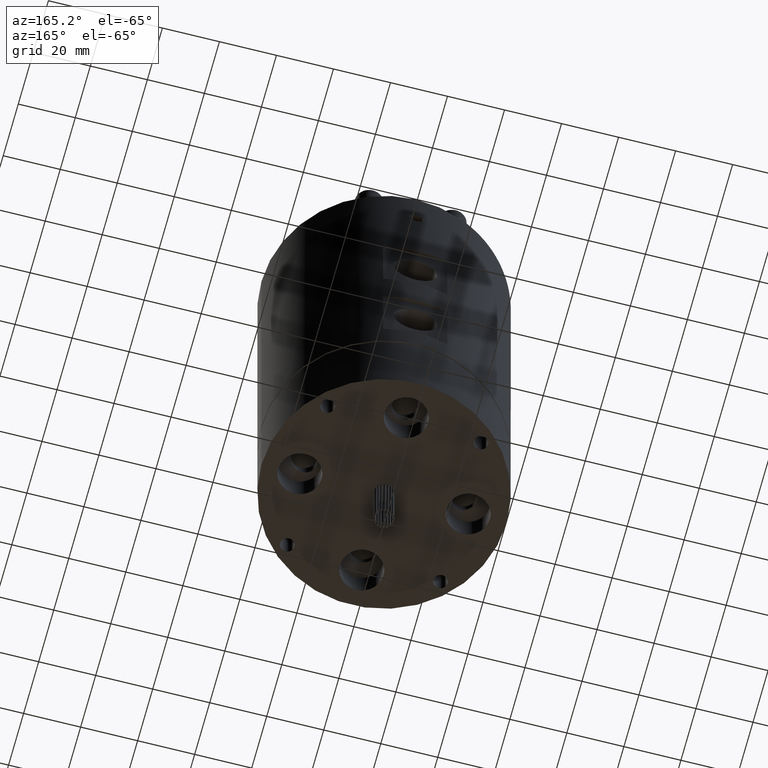
[diagram: clean part render]
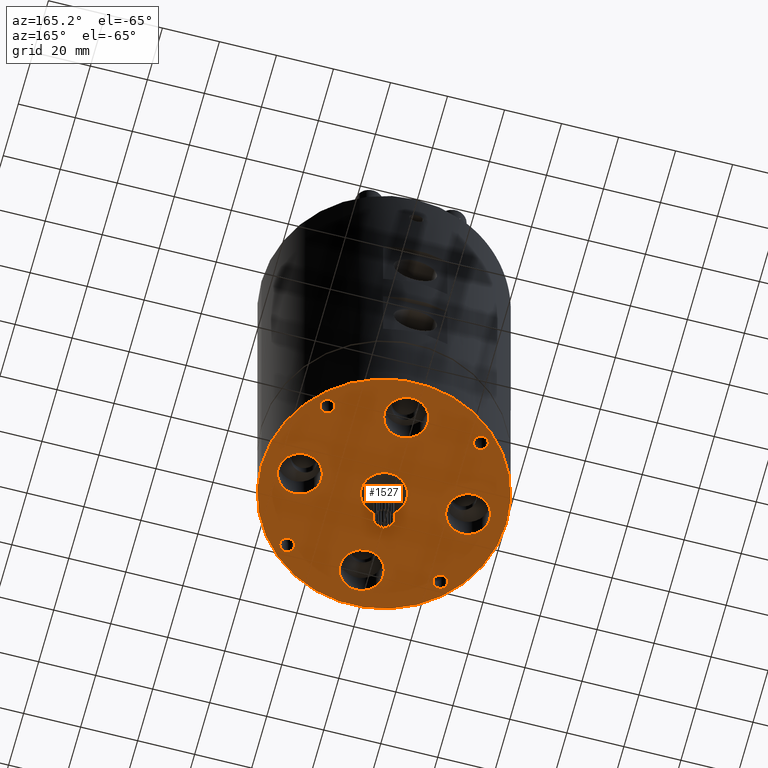
[diagram: same view with one face highlighted and labeled with its STEP entity id]
A machine part, auxiliary view. The second image highlights one B-rep face of the part: STEP entity #1527.
In plain terms, the highlighted planar face has unit normal (0, 0, 1).
Its self-contained STEP definition (entity closure, byte-faithful):
#16 = DIRECTION ( 'NONE',  ( 0.0000000000000000000, 0.0000000000000000000, -1.000000000000000000 ) ) ;
#19 = ORIENTED_EDGE ( 'NONE', *, *, #2160, .F. ) ;
#238 = CIRCLE ( 'NONE', #5121, 2.499999999999998700 ) ;
#241 = CIRCLE ( 'NONE', #2140, 8.000000000000000000 ) ;
#299 = AXIS2_PLACEMENT_3D ( 'NONE', #8094, #3962, #8791 ) ;
#300 = AXIS2_PLACEMENT_3D ( 'NONE', #5427, #1250, #6112 ) ;
#322 = DIRECTION ( 'NONE',  ( 0.0000000000000000000, 0.0000000000000000000, 1.000000000000000000 ) ) ;
#324 = ORIENTED_EDGE ( 'NONE', *, *, #7627, .F. ) ;
#362 = CARTESIAN_POINT ( 'NONE',  ( -37.12500000000000000, -1.029986994958724300E-013, 3.949485927250214300E-016 ) ) ;
#399 = DIRECTION ( 'NONE',  ( 0.0000000000000000000, 0.0000000000000000000, 1.000000000000000000 ) ) ;
#501 = CARTESIAN_POINT ( 'NONE',  ( -26.87005768508875300, -26.87005768508885200, 4.898587196589420500E-017 ) ) ;
#587 = ORIENTED_EDGE ( 'NONE', *, *, #4352, .F. ) ;
#593 = AXIS2_PLACEMENT_3D ( 'NONE', #5777, #1622, #6468 ) ;
#633 = EDGE_LOOP ( 'NONE', ( #7996, #5706 ) ) ;
#719 = ORIENTED_EDGE ( 'NONE', *, *, #7193, .F. ) ;
#726 = EDGE_CURVE ( 'NONE', #3837, #2728, #5026, .T. ) ;
#733 = CARTESIAN_POINT ( 'NONE',  ( 24.37005768508875300, -26.87005768508885200, 4.898587196589420500E-017 ) ) ;
#752 = ORIENTED_EDGE ( 'NONE', *, *, #1550, .F. ) ;
#845 = DIRECTION ( 'NONE',  ( -0.0000000000000000000, -0.0000000000000000000, -1.000000000000000000 ) ) ;
#855 = EDGE_LOOP ( 'NONE', ( #19, #587 ) ) ;
#911 = CIRCLE ( 'NONE', #3224, 7.625000000000000000 ) ;
#1061 = CIRCLE ( 'NONE', #300, 7.625000000000000000 ) ;
#1063 = DIRECTION ( 'NONE',  ( -0.0000000000000000000, -0.0000000000000000000, -1.000000000000000000 ) ) ;
#1078 = CARTESIAN_POINT ( 'NONE',  ( -29.50000000000000000, -1.029986994958724300E-013, 3.949485927250214300E-016 ) ) ;
#1095 = EDGE_CURVE ( 'NONE', #8257, #6250, #7270, .T. ) ;
#1211 = DIRECTION ( 'NONE',  ( -1.000000000000000000, 0.0000000000000000000, 0.0000000000000000000 ) ) ;
#1231 = AXIS2_PLACEMENT_3D ( 'NONE', #6138, #2009, #6839 ) ;
#1250 = DIRECTION ( 'NONE',  ( -0.0000000000000000000, -0.0000000000000000000, -1.000000000000000000 ) ) ;
#1454 = CARTESIAN_POINT ( 'NONE',  ( -8.000000000000000000, 0.0000000000000000000, 0.0000000000000000000 ) ) ;
#1467 = AXIS2_PLACEMENT_3D ( 'NONE', #7707, #3571, #8397 ) ;
#1512 = FACE_BOUND ( 'NONE', #3616, .T. ) ;
#1515 = CARTESIAN_POINT ( 'NONE',  ( -7.625000000000000000, 29.50000000000000000, 3.949485927250214300E-016 ) ) ;
#1527 = ADVANCED_FACE ( 'NONE', ( #1744, #7258, #1964, #8901, #7040, #5222, #3393, #1512, #8680, #6826 ), #6753, .F. ) ;
#1550 = EDGE_CURVE ( 'NONE', #8917, #4302, #1061, .T. ) ;
#1587 = EDGE_CURVE ( 'NONE', #6574, #2599, #4794, .T. ) ;
#1617 = DIRECTION ( 'NONE',  ( -0.0000000000000000000, -0.0000000000000000000, -1.000000000000000000 ) ) ;
#1622 = DIRECTION ( 'NONE',  ( -0.0000000000000000000, -0.0000000000000000000, -1.000000000000000000 ) ) ;
#1676 = ORIENTED_EDGE ( 'NONE', *, *, #1587, .F. ) ;
#1744 = FACE_BOUND ( 'NONE', #4807, .T. ) ;
#1802 = DIRECTION ( 'NONE',  ( -1.000000000000000000, 0.0000000000000000000, 0.0000000000000000000 ) ) ;
#1899 = CIRCLE ( 'NONE', #8836, 2.499999999999998700 ) ;
#1912 = CARTESIAN_POINT ( 'NONE',  ( 0.0000000000000000000, 0.0000000000000000000, 0.0000000000000000000 ) ) ;
#1933 = EDGE_CURVE ( 'NONE', #4808, #3156, #8563, .T. ) ;
#1964 = FACE_BOUND ( 'NONE', #8045, .T. ) ;
#2009 = DIRECTION ( 'NONE',  ( -0.0000000000000000000, -0.0000000000000000000, -1.000000000000000000 ) ) ;
#2026 = CIRCLE ( 'NONE', #4180, 2.499999999999998700 ) ;
#2043 = ORIENTED_EDGE ( 'NONE', *, *, #4441, .F. ) ;
#2092 = EDGE_LOOP ( 'NONE', ( #752, #719 ) ) ;
#2140 = AXIS2_PLACEMENT_3D ( 'NONE', #4210, #16, #4907 ) ;
#2160 = EDGE_CURVE ( 'NONE', #6299, #7053, #2026, .T. ) ;
#2177 = ORIENTED_EDGE ( 'NONE', *, *, #6014, .F. ) ;
#2216 = CIRCLE ( 'NONE', #7581, 8.000000000000000000 ) ;
#2253 = AXIS2_PLACEMENT_3D ( 'NONE', #5041, #845, #5714 ) ;
#2290 = DIRECTION ( 'NONE',  ( -0.0000000000000000000, -0.0000000000000000000, -1.000000000000000000 ) ) ;
#2342 = EDGE_CURVE ( 'NONE', #7394, #6000, #241, .T. ) ;
#2384 = ORIENTED_EDGE ( 'NONE', *, *, #7989, .F. ) ;
#2440 = DIRECTION ( 'NONE',  ( 0.0000000000000000000, 0.0000000000000000000, -1.000000000000000000 ) ) ;
#2599 = VERTEX_POINT ( 'NONE', #6566 ) ;
#2667 = CARTESIAN_POINT ( 'NONE',  ( 0.0000000000000000000, 29.50000000000000000, 3.949485927250214300E-016 ) ) ;
#2713 = VERTEX_POINT ( 'NONE', #6260 ) ;
#2728 = VERTEX_POINT ( 'NONE', #8356 ) ;
#2804 = EDGE_CURVE ( 'NONE', #8312, #5858, #4396, .T. ) ;
#2834 = ORIENTED_EDGE ( 'NONE', *, *, #2804, .F. ) ;
#2852 = AXIS2_PLACEMENT_3D ( 'NONE', #6891, #2290, #7107 ) ;
#2867 = ORIENTED_EDGE ( 'NONE', *, *, #7910, .F. ) ;
#2952 = AXIS2_PLACEMENT_3D ( 'NONE', #501, #5388, #1211 ) ;
#2957 = CARTESIAN_POINT ( 'NONE',  ( 7.625000000000000900, 29.50000000000000000, 3.949485927250214300E-016 ) ) ;
#3080 = DIRECTION ( 'NONE',  ( -0.0000000000000000000, -0.0000000000000000000, -1.000000000000000000 ) ) ;
#3097 = CARTESIAN_POINT ( 'NONE',  ( 8.000000000000000000, 9.797174393178825700E-016, 0.0000000000000000000 ) ) ;
#3156 = VERTEX_POINT ( 'NONE', #6745 ) ;
#3178 = CARTESIAN_POINT ( 'NONE',  ( -26.87005768508875300, -26.87005768508885200, 4.898587196589420500E-017 ) ) ;
#3211 = CARTESIAN_POINT ( 'NONE',  ( 7.625000000000000900, -29.50000000000000000, 3.949485927250214300E-016 ) ) ;
#3224 = AXIS2_PLACEMENT_3D ( 'NONE', #1078, #5945, #1802 ) ;
#3370 = DIRECTION ( 'NONE',  ( -1.000000000000000000, 0.0000000000000000000, 0.0000000000000000000 ) ) ;
#3393 = FACE_BOUND ( 'NONE', #8688, .T. ) ;
#3571 = DIRECTION ( 'NONE',  ( -0.0000000000000000000, -0.0000000000000000000, -1.000000000000000000 ) ) ;
#3582 = CIRCLE ( 'NONE', #2852, 2.499999999999998700 ) ;
#3616 = EDGE_LOOP ( 'NONE', ( #5746, #2043 ) ) ;
#3656 = EDGE_CURVE ( 'NONE', #3787, #4669, #8501, .T. ) ;
#3672 = CIRCLE ( 'NONE', #6953, 43.00000000000000000 ) ;
#3787 = VERTEX_POINT ( 'NONE', #5901 ) ;
#3837 = VERTEX_POINT ( 'NONE', #3211 ) ;
#3865 = DIRECTION ( 'NONE',  ( -1.000000000000000000, 0.0000000000000000000, 0.0000000000000000000 ) ) ;
#3935 = CARTESIAN_POINT ( 'NONE',  ( 26.87005768508875300, 26.87005768508885200, 4.898587196589420500E-017 ) ) ;
#3962 = DIRECTION ( 'NONE',  ( -0.0000000000000000000, -0.0000000000000000000, -1.000000000000000000 ) ) ;
#3982 = CARTESIAN_POINT ( 'NONE',  ( 26.87005768508875300, -26.87005768508885200, 4.898587196589420500E-017 ) ) ;
#4066 = EDGE_CURVE ( 'NONE', #2728, #3837, #5895, .T. ) ;
#4180 = AXIS2_PLACEMENT_3D ( 'NONE', #3982, #8809, #4674 ) ;
#4210 = CARTESIAN_POINT ( 'NONE',  ( 0.0000000000000000000, 0.0000000000000000000, 0.0000000000000000000 ) ) ;
#4302 = VERTEX_POINT ( 'NONE', #2957 ) ;
#4327 = EDGE_LOOP ( 'NONE', ( #2177, #324 ) ) ;
#4339 = AXIS2_PLACEMENT_3D ( 'NONE', #5772, #1617, #6463 ) ;
#4352 = EDGE_CURVE ( 'NONE', #7053, #6299, #8173, .T. ) ;
#4360 = ORIENTED_EDGE ( 'NONE', *, *, #5844, .F. ) ;
#4367 = AXIS2_PLACEMENT_3D ( 'NONE', #4596, #399, #5279 ) ;
#4396 = CIRCLE ( 'NONE', #2253, 7.625000000000000000 ) ;
#4441 = EDGE_CURVE ( 'NONE', #6000, #7394, #2216, .T. ) ;
#4511 = CARTESIAN_POINT ( 'NONE',  ( 0.0000000000000000000, 0.0000000000000000000, 0.0000000000000000000 ) ) ;
#4541 = CARTESIAN_POINT ( 'NONE',  ( 21.87500000000000000, 3.089960984876173000E-013, 3.949485927250214300E-016 ) ) ;
#4596 = CARTESIAN_POINT ( 'NONE',  ( 0.0000000000000000000, 0.0000000000000000000, 0.0000000000000000000 ) ) ;
#4628 = DIRECTION ( 'NONE',  ( -1.000000000000000000, 0.0000000000000000000, 0.0000000000000000000 ) ) ;
#4669 = VERTEX_POINT ( 'NONE', #6022 ) ;
#4674 = DIRECTION ( 'NONE',  ( -1.000000000000000000, 0.0000000000000000000, 0.0000000000000000000 ) ) ;
#4715 = DIRECTION ( 'NONE',  ( 1.000000000000000000, 0.0000000000000000000, -0.0000000000000000000 ) ) ;
#4794 = CIRCLE ( 'NONE', #1231, 7.625000000000000000 ) ;
#4807 = EDGE_LOOP ( 'NONE', ( #1676, #4360 ) ) ;
#4808 = VERTEX_POINT ( 'NONE', #6139 ) ;
#4907 = DIRECTION ( 'NONE',  ( -1.000000000000000000, 0.0000000000000000000, 0.0000000000000000000 ) ) ;
#5026 = CIRCLE ( 'NONE', #1467, 7.625000000000000000 ) ;
#5041 = CARTESIAN_POINT ( 'NONE',  ( -29.50000000000000000, -1.029986994958724300E-013, 3.949485927250214300E-016 ) ) ;
#5121 = AXIS2_PLACEMENT_3D ( 'NONE', #7194, #3080, #7906 ) ;
#5211 = DIRECTION ( 'NONE',  ( 1.000000000000000000, 0.0000000000000000000, 0.0000000000000000000 ) ) ;
#5222 = FACE_BOUND ( 'NONE', #7848, .T. ) ;
#5250 = CARTESIAN_POINT ( 'NONE',  ( 29.50000000000000000, 3.089960984876173000E-013, 3.949485927250214300E-016 ) ) ;
#5264 = EDGE_CURVE ( 'NONE', #6250, #8257, #3582, .T. ) ;
#5279 = DIRECTION ( 'NONE',  ( 1.000000000000000000, 0.0000000000000000000, 0.0000000000000000000 ) ) ;
#5388 = DIRECTION ( 'NONE',  ( -0.0000000000000000000, -0.0000000000000000000, -1.000000000000000000 ) ) ;
#5427 = CARTESIAN_POINT ( 'NONE',  ( 0.0000000000000000000, 29.50000000000000000, 3.949485927250214300E-016 ) ) ;
#5509 = ORIENTED_EDGE ( 'NONE', *, *, #6598, .F. ) ;
#5567 = CARTESIAN_POINT ( 'NONE',  ( 24.37005768508875300, 26.87005768508885200, 4.898587196589420500E-017 ) ) ;
#5705 = CARTESIAN_POINT ( 'NONE',  ( -21.87500000000000000, -1.020649063115225800E-013, 3.949485927250214300E-016 ) ) ;
#5706 = ORIENTED_EDGE ( 'NONE', *, *, #726, .F. ) ;
#5711 = EDGE_LOOP ( 'NONE', ( #2867, #6686 ) ) ;
#5714 = DIRECTION ( 'NONE',  ( -1.000000000000000000, 0.0000000000000000000, 0.0000000000000000000 ) ) ;
#5746 = ORIENTED_EDGE ( 'NONE', *, *, #2342, .F. ) ;
#5772 = CARTESIAN_POINT ( 'NONE',  ( 26.87005768508875300, -26.87005768508885200, 4.898587196589420500E-017 ) ) ;
#5777 = CARTESIAN_POINT ( 'NONE',  ( -26.87005768508875300, 26.87005768508885200, 4.898587196589420500E-017 ) ) ;
#5844 = EDGE_CURVE ( 'NONE', #2599, #6574, #6800, .T. ) ;
#5848 = ORIENTED_EDGE ( 'NONE', *, *, #1933, .F. ) ;
#5858 = VERTEX_POINT ( 'NONE', #362 ) ;
#5895 = CIRCLE ( 'NONE', #299, 7.625000000000000000 ) ;
#5901 = CARTESIAN_POINT ( 'NONE',  ( -24.37005768508875300, 26.87005768508885200, 4.898587196589420500E-017 ) ) ;
#5928 = DIRECTION ( 'NONE',  ( -1.000000000000000000, 0.0000000000000000000, 0.0000000000000000000 ) ) ;
#5945 = DIRECTION ( 'NONE',  ( -0.0000000000000000000, -0.0000000000000000000, -1.000000000000000000 ) ) ;
#6000 = VERTEX_POINT ( 'NONE', #3097 ) ;
#6014 = EDGE_CURVE ( 'NONE', #7111, #2713, #3672, .T. ) ;
#6022 = CARTESIAN_POINT ( 'NONE',  ( -29.37005768508874900, 26.87005768508885200, 4.898587196589420500E-017 ) ) ;
#6112 = DIRECTION ( 'NONE',  ( -1.000000000000000000, 0.0000000000000000000, 0.0000000000000000000 ) ) ;
#6138 = CARTESIAN_POINT ( 'NONE',  ( 29.50000000000000000, 3.089960984876173000E-013, 3.949485927250214300E-016 ) ) ;
#6139 = CARTESIAN_POINT ( 'NONE',  ( -29.37005768508874900, -26.87005768508885200, 4.898587196589420500E-017 ) ) ;
#6250 = VERTEX_POINT ( 'NONE', #7611 ) ;
#6260 = CARTESIAN_POINT ( 'NONE',  ( 43.00000000000000000, 5.265981236333618500E-015, 0.0000000000000000000 ) ) ;
#6299 = VERTEX_POINT ( 'NONE', #733 ) ;
#6463 = DIRECTION ( 'NONE',  ( -1.000000000000000000, 0.0000000000000000000, 0.0000000000000000000 ) ) ;
#6468 = DIRECTION ( 'NONE',  ( -1.000000000000000000, 0.0000000000000000000, 0.0000000000000000000 ) ) ;
#6541 = AXIS2_PLACEMENT_3D ( 'NONE', #2667, #7486, #3370 ) ;
#6546 = ORIENTED_EDGE ( 'NONE', *, *, #5264, .F. ) ;
#6553 = CARTESIAN_POINT ( 'NONE',  ( 0.0000000000000000000, 0.0000000000000000000, 0.0000000000000000000 ) ) ;
#6566 = CARTESIAN_POINT ( 'NONE',  ( 37.12500000000000000, 3.099298916719671200E-013, 3.949485927250214300E-016 ) ) ;
#6574 = VERTEX_POINT ( 'NONE', #4541 ) ;
#6598 = EDGE_CURVE ( 'NONE', #5858, #8312, #911, .T. ) ;
#6681 = ORIENTED_EDGE ( 'NONE', *, *, #1095, .F. ) ;
#6686 = ORIENTED_EDGE ( 'NONE', *, *, #3656, .F. ) ;
#6745 = CARTESIAN_POINT ( 'NONE',  ( -24.37005768508875300, -26.87005768508885200, 4.898587196589420500E-017 ) ) ;
#6753 = PLANE ( 'NONE',  #8386 ) ;
#6800 = CIRCLE ( 'NONE', #8517, 7.625000000000000000 ) ;
#6826 = FACE_OUTER_BOUND ( 'NONE', #4327, .T. ) ;
#6839 = DIRECTION ( 'NONE',  ( -1.000000000000000000, 0.0000000000000000000, 0.0000000000000000000 ) ) ;
#6875 = AXIS2_PLACEMENT_3D ( 'NONE', #3935, #8764, #4628 ) ;
#6891 = CARTESIAN_POINT ( 'NONE',  ( 26.87005768508875300, 26.87005768508885200, 4.898587196589420500E-017 ) ) ;
#6953 = AXIS2_PLACEMENT_3D ( 'NONE', #4511, #322, #5211 ) ;
#7040 = FACE_BOUND ( 'NONE', #855, .T. ) ;
#7053 = VERTEX_POINT ( 'NONE', #7132 ) ;
#7089 = CIRCLE ( 'NONE', #6541, 7.625000000000000000 ) ;
#7107 = DIRECTION ( 'NONE',  ( -1.000000000000000000, 0.0000000000000000000, 0.0000000000000000000 ) ) ;
#7111 = VERTEX_POINT ( 'NONE', #8596 ) ;
#7132 = CARTESIAN_POINT ( 'NONE',  ( 29.37005768508874900, -26.87005768508885200, 4.898587196589420500E-017 ) ) ;
#7193 = EDGE_CURVE ( 'NONE', #4302, #8917, #7089, .T. ) ;
#7194 = CARTESIAN_POINT ( 'NONE',  ( -26.87005768508875300, 26.87005768508885200, 4.898587196589420500E-017 ) ) ;
#7258 = FACE_BOUND ( 'NONE', #633, .T. ) ;
#7260 = DIRECTION ( 'NONE',  ( -1.000000000000000000, 0.0000000000000000000, 0.0000000000000000000 ) ) ;
#7270 = CIRCLE ( 'NONE', #6875, 2.499999999999998700 ) ;
#7394 = VERTEX_POINT ( 'NONE', #1454 ) ;
#7486 = DIRECTION ( 'NONE',  ( -0.0000000000000000000, -0.0000000000000000000, -1.000000000000000000 ) ) ;
#7581 = AXIS2_PLACEMENT_3D ( 'NONE', #6553, #2440, #7260 ) ;
#7611 = CARTESIAN_POINT ( 'NONE',  ( 29.37005768508874900, 26.87005768508885200, 4.898587196589420500E-017 ) ) ;
#7627 = EDGE_CURVE ( 'NONE', #2713, #7111, #7970, .T. ) ;
#7707 = CARTESIAN_POINT ( 'NONE',  ( 0.0000000000000000000, -29.50000000000000000, 3.949485927250214300E-016 ) ) ;
#7848 = EDGE_LOOP ( 'NONE', ( #5848, #2384 ) ) ;
#7906 = DIRECTION ( 'NONE',  ( -1.000000000000000000, 0.0000000000000000000, 0.0000000000000000000 ) ) ;
#7910 = EDGE_CURVE ( 'NONE', #4669, #3787, #238, .T. ) ;
#7970 = CIRCLE ( 'NONE', #4367, 43.00000000000000000 ) ;
#7989 = EDGE_CURVE ( 'NONE', #3156, #4808, #1899, .T. ) ;
#7996 = ORIENTED_EDGE ( 'NONE', *, *, #4066, .F. ) ;
#7999 = DIRECTION ( 'NONE',  ( -0.0000000000000000000, -0.0000000000000000000, -1.000000000000000000 ) ) ;
#8045 = EDGE_LOOP ( 'NONE', ( #5509, #2834 ) ) ;
#8094 = CARTESIAN_POINT ( 'NONE',  ( 0.0000000000000000000, -29.50000000000000000, 3.949485927250214300E-016 ) ) ;
#8173 = CIRCLE ( 'NONE', #4339, 2.499999999999998700 ) ;
#8257 = VERTEX_POINT ( 'NONE', #5567 ) ;
#8312 = VERTEX_POINT ( 'NONE', #5705 ) ;
#8356 = CARTESIAN_POINT ( 'NONE',  ( -7.625000000000000000, -29.50000000000000000, 3.949485927250214300E-016 ) ) ;
#8386 = AXIS2_PLACEMENT_3D ( 'NONE', #1912, #8854, #4715 ) ;
#8397 = DIRECTION ( 'NONE',  ( -1.000000000000000000, 0.0000000000000000000, 0.0000000000000000000 ) ) ;
#8501 = CIRCLE ( 'NONE', #593, 2.499999999999998700 ) ;
#8517 = AXIS2_PLACEMENT_3D ( 'NONE', #5250, #1063, #5928 ) ;
#8563 = CIRCLE ( 'NONE', #2952, 2.499999999999998700 ) ;
#8596 = CARTESIAN_POINT ( 'NONE',  ( -43.00000000000000000, 0.0000000000000000000, 0.0000000000000000000 ) ) ;
#8680 = FACE_BOUND ( 'NONE', #5711, .T. ) ;
#8688 = EDGE_LOOP ( 'NONE', ( #6681, #6546 ) ) ;
#8764 = DIRECTION ( 'NONE',  ( -0.0000000000000000000, -0.0000000000000000000, -1.000000000000000000 ) ) ;
#8791 = DIRECTION ( 'NONE',  ( -1.000000000000000000, 0.0000000000000000000, 0.0000000000000000000 ) ) ;
#8809 = DIRECTION ( 'NONE',  ( -0.0000000000000000000, -0.0000000000000000000, -1.000000000000000000 ) ) ;
#8836 = AXIS2_PLACEMENT_3D ( 'NONE', #3178, #7999, #3865 ) ;
#8854 = DIRECTION ( 'NONE',  ( 0.0000000000000000000, 0.0000000000000000000, 1.000000000000000000 ) ) ;
#8901 = FACE_BOUND ( 'NONE', #2092, .T. ) ;
#8917 = VERTEX_POINT ( 'NONE', #1515 ) ;